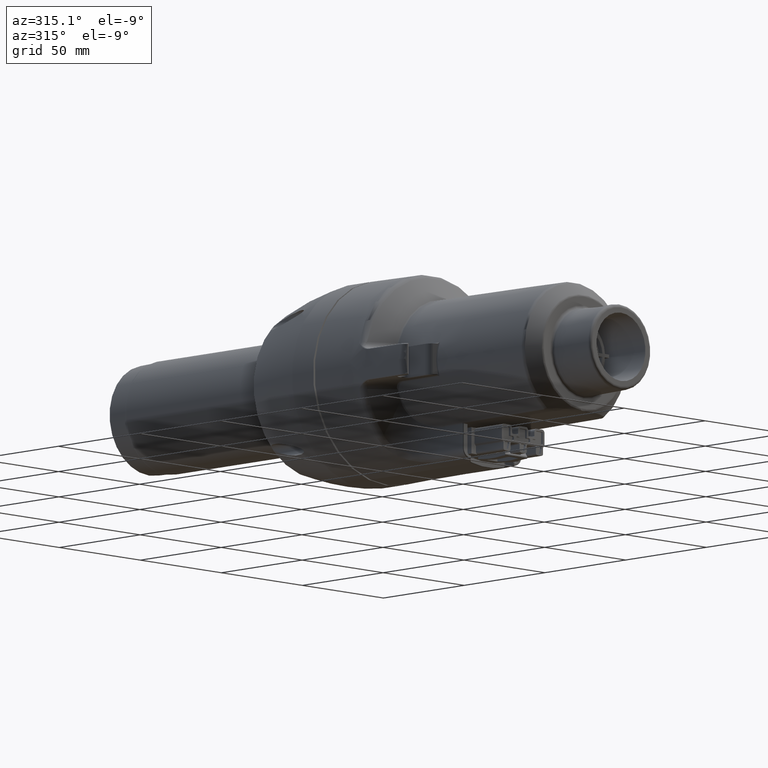
[diagram: clean part render]
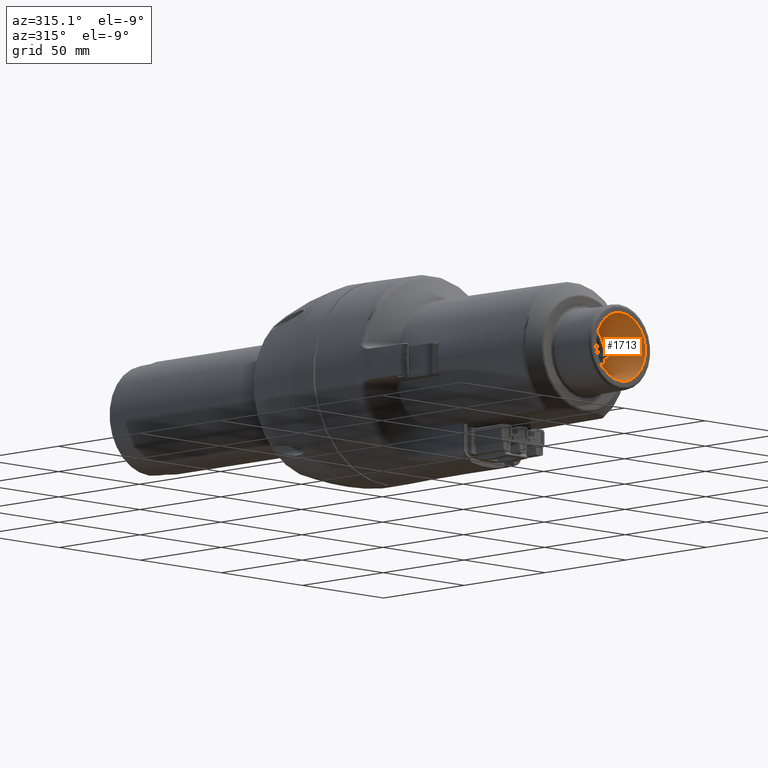
[diagram: same view with one face highlighted and labeled with its STEP entity id]
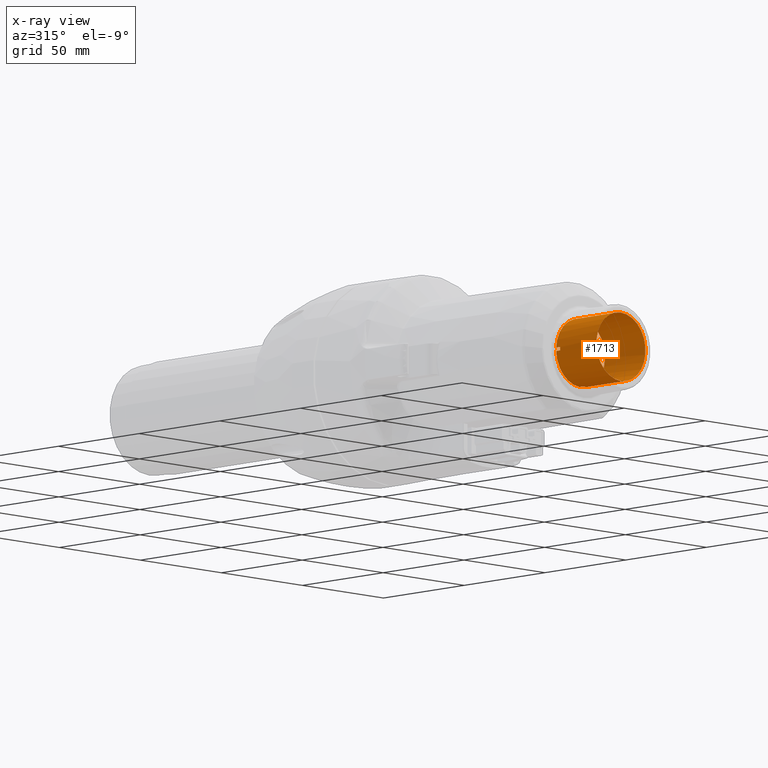
[diagram: x-ray of the same camera — body ghosted, the highlighted face saturated]
A machine part, auxiliary view. The second image highlights one B-rep face of the part: STEP entity #1713.
The next image is the same camera in x-ray: the body ghosted, the highlighted face saturated — about 0% of this face is hidden behind the body in this view.
In plain terms, the highlighted cylindrical surface (bore or boss wall) has radius 15.1245 mm, axis along (-0, 1, -0).
Its self-contained STEP definition (entity closure, byte-faithful):
#1713 = ADVANCED_FACE( '', ( #3960, #3961 ), #3962, .F. );
#3960 = FACE_OUTER_BOUND( '', #8606, .T. );
#3961 = FACE_OUTER_BOUND( '', #8607, .T. );
#3962 = CYLINDRICAL_SURFACE( '', #8608, 15.1244999999997 );
#8606 = EDGE_LOOP( '', ( #16663, #16664, #16665, #16666, #16667, #16668, #16669, #16670, #16671, #16672, #16673, #16674, #16675, #16676, #16677, #16678 ) );
#8607 = EDGE_LOOP( '', ( #16679 ) );
#8608 = AXIS2_PLACEMENT_3D( '', #16680, #16681, #16682 );
#16663 = ORIENTED_EDGE( '', *, *, #23295, .T. );
#16664 = ORIENTED_EDGE( '', *, *, #22575, .T. );
#16665 = ORIENTED_EDGE( '', *, *, #22119, .T. );
#16666 = ORIENTED_EDGE( '', *, *, #23296, .T. );
#16667 = ORIENTED_EDGE( '', *, *, #23297, .T. );
#16668 = ORIENTED_EDGE( '', *, *, #23298, .T. );
#16669 = ORIENTED_EDGE( '', *, *, #22764, .T. );
#16670 = ORIENTED_EDGE( '', *, *, #22461, .T. );
#16671 = ORIENTED_EDGE( '', *, *, #23299, .T. );
#16672 = ORIENTED_EDGE( '', *, *, #22117, .T. );
#16673 = ORIENTED_EDGE( '', *, *, #23300, .T. );
#16674 = ORIENTED_EDGE( '', *, *, #23023, .T. );
#16675 = ORIENTED_EDGE( '', *, *, #23301, .T. );
#16676 = ORIENTED_EDGE( '', *, *, #23302, .T. );
#16677 = ORIENTED_EDGE( '', *, *, #21521, .T. );
#16678 = ORIENTED_EDGE( '', *, *, #23303, .T. );
#16679 = ORIENTED_EDGE( '', *, *, #23304, .T. );
#16680 = CARTESIAN_POINT( '', ( 4.10301509033644E-011, 47.1236381961978, 4.11266141750298E-011 ) );
#16681 = DIRECTION( '', ( -0.000000000000000, 1.00000000000000, -0.000000000000000 ) );
#16682 = DIRECTION( '', ( 0.000000000000000, 0.000000000000000, 1.00000000000000 ) );
#21521 = EDGE_CURVE( '', #25251, #25252, #25253, .T. );
#22117 = EDGE_CURVE( '', #26250, #26252, #26254, .T. );
#22119 = EDGE_CURVE( '', #26256, #26257, #26258, .T. );
#22461 = EDGE_CURVE( '', #26807, #26805, #26808, .T. );
#22575 = EDGE_CURVE( '', #26983, #26256, #26987, .T. );
#22764 = EDGE_CURVE( '', #27273, #26807, #27274, .T. );
#23023 = EDGE_CURVE( '', #27661, #27659, #27662, .T. );
#23295 = EDGE_CURVE( '', #28080, #26983, #28081, .T. );
#23296 = EDGE_CURVE( '', #26257, #28082, #28083, .T. );
#23297 = EDGE_CURVE( '', #28082, #28084, #28085, .T. );
#23298 = EDGE_CURVE( '', #28084, #27273, #28086, .T. );
#23299 = EDGE_CURVE( '', #26805, #26250, #28087, .T. );
#23300 = EDGE_CURVE( '', #26252, #27661, #28088, .T. );
#23301 = EDGE_CURVE( '', #27659, #28089, #28090, .T. );
#23302 = EDGE_CURVE( '', #28089, #25251, #28091, .T. );
#23303 = EDGE_CURVE( '', #25252, #28080, #28092, .T. );
#23304 = EDGE_CURVE( '', #28093, #28093, #28094, .T. );
#25251 = VERTEX_POINT( '', #30955 );
#25252 = VERTEX_POINT( '', #30956 );
#25253 = CIRCLE( '', #30957, 15.1244999999997 );
#26250 = VERTEX_POINT( '', #32820 );
#26252 = VERTEX_POINT( '', #32823 );
#26254 = LINE( '', #32826, #32827 );
#26256 = VERTEX_POINT( '', #32829 );
#26257 = VERTEX_POINT( '', #32830 );
#26258 = CIRCLE( '', #32831, 15.1244999999997 );
#26805 = VERTEX_POINT( '', #33796 );
#26807 = VERTEX_POINT( '', #33799 );
#26808 = LINE( '', #33800, #33801 );
#26983 = VERTEX_POINT( '', #34185 );
#26987 = LINE( '', #34191, #34192 );
#27273 = VERTEX_POINT( '', #34642 );
#27274 = CIRCLE( '', #34643, 15.1244999999997 );
#27659 = VERTEX_POINT( '', #35429 );
#27661 = VERTEX_POINT( '', #35432 );
#27662 = LINE( '', #35433, #35434 );
#28080 = VERTEX_POINT( '', #36072 );
#28081 = CIRCLE( '', #36073, 15.1244999999997 );
#28082 = VERTEX_POINT( '', #36074 );
#28083 = LINE( '', #36075, #36076 );
#28084 = VERTEX_POINT( '', #36077 );
#28085 = CIRCLE( '', #36078, 15.1244999999997 );
#28086 = LINE( '', #36079, #36080 );
#28087 = CIRCLE( '', #36081, 15.1244999999997 );
#28088 = CIRCLE( '', #36082, 15.1244999999997 );
#28089 = VERTEX_POINT( '', #36083 );
#28090 = CIRCLE( '', #36084, 15.1244999999997 );
#28091 = LINE( '', #36085, #36086 );
#28092 = LINE( '', #36087, #36088 );
#28093 = VERTEX_POINT( '', #36089 );
#28094 = CIRCLE( '', #36090, 15.1244999999997 );
#30955 = CARTESIAN_POINT( '', ( 15.1058928981792, -122.732483002387, -0.749999999958900 ) );
#30956 = CARTESIAN_POINT( '', ( 0.750000000041577, -122.732483002387, -15.1058928980960 ) );
#30957 = AXIS2_PLACEMENT_3D( '', #39448, #39449, #39450 );
#32820 = CARTESIAN_POINT( '', ( 0.750000000041450, -125.200000000007, 15.1058928981792 ) );
#32823 = CARTESIAN_POINT( '', ( 0.750000000041450, -122.732483002387, 15.1058928981792 ) );
#32826 = CARTESIAN_POINT( '', ( 0.750000000041704, -125.200000000007, 15.1058928981792 ) );
#32827 = VECTOR( '', #40189, 1000.00000000000 );
#32829 = CARTESIAN_POINT( '', ( -0.749999999958646, -122.732483002387, -15.1058928980954 ) );
#32830 = CARTESIAN_POINT( '', ( -15.1058928980962, -122.732483002387, -0.749999999959027 ) );
#32831 = AXIS2_PLACEMENT_3D( '', #40190, #40191, #40192 );
#33796 = CARTESIAN_POINT( '', ( -0.749999999958392, -125.200000000007, 15.1058928981792 ) );
#33799 = CARTESIAN_POINT( '', ( -0.749999999958646, -122.732483002387, 15.1058928981792 ) );
#33800 = CARTESIAN_POINT( '', ( -0.749999999958392, -122.732483002387, 15.1058928981792 ) );
#33801 = VECTOR( '', #40630, 1000.00000000000 );
#34185 = CARTESIAN_POINT( '', ( -0.750000000607616, -125.200000000007, -15.1058928980649 ) );
#34191 = CARTESIAN_POINT( '', ( -0.749999999958392, -125.200000000007, -15.1058928937291 ) );
#34192 = VECTOR( '', #40762, 1000.00000000000 );
#34642 = CARTESIAN_POINT( '', ( -15.1058928980954, -122.732483002387, 0.750000000040942 ) );
#34643 = AXIS2_PLACEMENT_3D( '', #40994, #40995, #40996 );
#35429 = CARTESIAN_POINT( '', ( 15.1058928981782, -125.200000000007, 0.750000000040942 ) );
#35432 = CARTESIAN_POINT( '', ( 15.1058928981782, -122.732483002387, 0.750000000040942 ) );
#35433 = CARTESIAN_POINT( '', ( 15.1058928981782, -122.732483002387, 0.750000000040942 ) );
#35434 = VECTOR( '', #41275, 1000.00000000000 );
#36072 = CARTESIAN_POINT( '', ( 0.750000000041704, -125.200000000007, -15.1058928980960 ) );
#36073 = AXIS2_PLACEMENT_3D( '', #41740, #41741, #41742 );
#36074 = CARTESIAN_POINT( '', ( -15.1058928980962, -125.200000000007, -0.749999999959154 ) );
#36075 = CARTESIAN_POINT( '', ( -15.1058928980962, -122.732483002387, -0.749999999959154 ) );
#36076 = VECTOR( '', #41743, 1000.00000000000 );
#36077 = CARTESIAN_POINT( '', ( -15.1058928980954, -125.200000000007, 0.750000000040942 ) );
#36078 = AXIS2_PLACEMENT_3D( '', #41744, #41745, #41746 );
#36079 = CARTESIAN_POINT( '', ( -15.1058928980954, -125.200000000007, 0.750000000040942 ) );
#36080 = VECTOR( '', #41747, 1000.00000000000 );
#36081 = AXIS2_PLACEMENT_3D( '', #41748, #41749, #41750 );
#36082 = AXIS2_PLACEMENT_3D( '', #41751, #41752, #41753 );
#36083 = CARTESIAN_POINT( '', ( 15.1058928981792, -125.200000000007, -0.749999999958900 ) );
#36084 = AXIS2_PLACEMENT_3D( '', #41754, #41755, #41756 );
#36085 = CARTESIAN_POINT( '', ( 15.1058928981792, -125.200000000007, -0.749999999959154 ) );
#36086 = VECTOR( '', #41757, 1000.00000000000 );
#36087 = CARTESIAN_POINT( '', ( 0.750000000041704, -122.732483002387, -15.1058928980960 ) );
#36088 = VECTOR( '', #41758, 1000.00000000000 );
#36089 = CARTESIAN_POINT( '', ( 4.14042738075725E-011, -147.699999999993, 15.1245000000408 ) );
#36090 = AXIS2_PLACEMENT_3D( '', #41759, #41760, #41761 );
#39448 = CARTESIAN_POINT( '', ( 4.10301509033644E-011, -122.732483002387, 4.11266141750298E-011 ) );
#39449 = DIRECTION( '', ( 0.000000000000000, 1.00000000000000, 0.000000000000000 ) );
#39450 = DIRECTION( '', ( 0.998769737719426, 0.000000000000000, -0.0495884161459913 ) );
#40189 = DIRECTION( '', ( -3.43207842177700E-014, 1.00000000000000, -1.39425953783700E-013 ) );
#40190 = CARTESIAN_POINT( '', ( 4.10301509033644E-011, -122.732483002387, 4.11266141750298E-011 ) );
#40191 = DIRECTION( '', ( 0.000000000000000, 1.00000000000000, 0.000000000000000 ) );
#40192 = DIRECTION( '', ( -0.0495884161459714, 0.000000000000000, -0.998769737719427 ) );
#40630 = DIRECTION( '', ( 6.86058548203300E-014, -1.00000000000000, 1.35997446723500E-013 ) );
#40762 = DIRECTION( '', ( -3.42850706025600E-014, 1.00000000000000, -1.76993019911500E-009 ) );
#40994 = CARTESIAN_POINT( '', ( 4.10301509033644E-011, -122.732483002387, 4.11266141750298E-011 ) );
#40995 = DIRECTION( '', ( 0.000000000000000, 1.00000000000000, 0.000000000000000 ) );
#40996 = DIRECTION( '', ( -0.998769737719427, 0.000000000000000, 0.0495884161459813 ) );
#41275 = DIRECTION( '', ( 0.000000000000000, -1.00000000000000, 0.000000000000000 ) );
#41740 = CARTESIAN_POINT( '', ( 4.10301509033644E-011, -125.200000000007, 4.11266141750298E-011 ) );
#41741 = DIRECTION( '', ( 0.000000000000000, 1.00000000000000, 0.000000000000000 ) );
#41742 = DIRECTION( '', ( 0.0495886230236018, 0.000000000000000, -0.998769727448035 ) );
#41743 = DIRECTION( '', ( 0.000000000000000, -1.00000000000000, 0.000000000000000 ) );
#41744 = CARTESIAN_POINT( '', ( 4.10301509033644E-011, -125.200000000007, 4.11266141750298E-011 ) );
#41745 = DIRECTION( '', ( 0.000000000000000, 1.00000000000000, 0.000000000000000 ) );
#41746 = DIRECTION( '', ( -0.998769716961521, 0.000000000000000, -0.0495888342331511 ) );
#41747 = DIRECTION( '', ( -6.51416341448600E-014, 1.00000000000000, 0.000000000000000 ) );
#41748 = CARTESIAN_POINT( '', ( 4.10301509033644E-011, -125.200000000007, 4.11266141750298E-011 ) );
#41749 = DIRECTION( '', ( -0.000000000000000, 1.00000000000000, 0.000000000000000 ) );
#41750 = DIRECTION( '', ( 4.16672641098100E-014, 0.000000000000000, 1.00000000000000 ) );
#41751 = CARTESIAN_POINT( '', ( 4.10301509033644E-011, -122.732483002387, 4.11266141750298E-011 ) );
#41752 = DIRECTION( '', ( -0.000000000000000, 1.00000000000000, 0.000000000000000 ) );
#41753 = DIRECTION( '', ( 0.0495884161460212, 0.000000000000000, 0.998769737719425 ) );
#41754 = CARTESIAN_POINT( '', ( 4.10301509033644E-011, -125.200000000007, 4.11266141750298E-011 ) );
#41755 = DIRECTION( '', ( -0.000000000000000, 1.00000000000000, 0.000000000000000 ) );
#41756 = DIRECTION( '', ( 0.998769716961522, 0.000000000000000, 0.0495888342331311 ) );
#41757 = DIRECTION( '', ( -9.48553620004100E-014, 1.00000000000000, 3.42850706025600E-014 ) );
#41758 = DIRECTION( '', ( 0.000000000000000, -1.00000000000000, 0.000000000000000 ) );
#41759 = CARTESIAN_POINT( '', ( 4.10301509033644E-011, -147.699999999993, 4.11266141750298E-011 ) );
#41760 = DIRECTION( '', ( 0.000000000000000, -1.00000000000000, 0.000000000000000 ) );
#41761 = DIRECTION( '', ( 2.47362163514900E-014, 0.000000000000000, 1.00000000000000 ) );